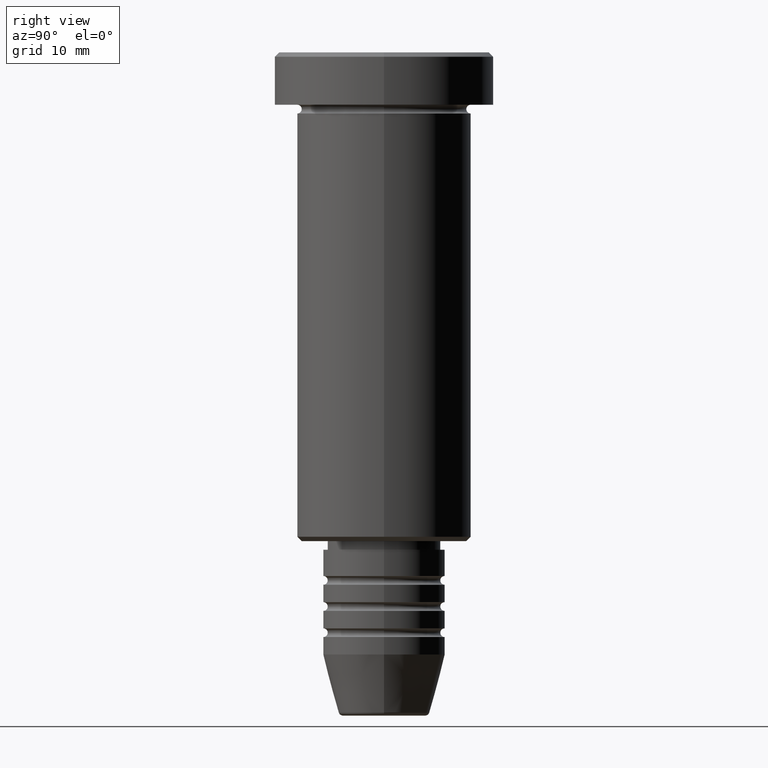
[diagram: clean part render]
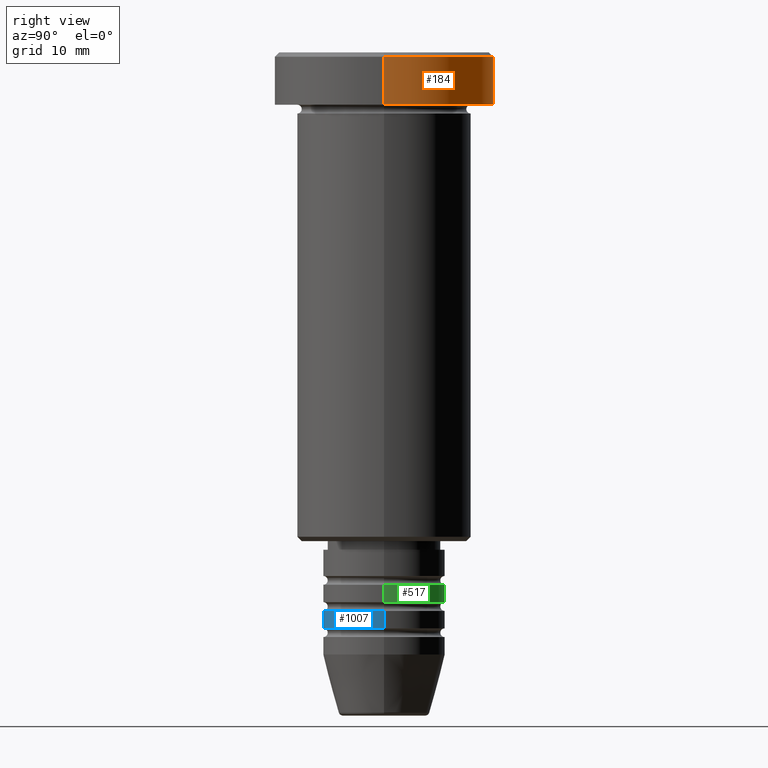
[diagram: same view with three faces highlighted in distinct colors, each labeled with its STEP entity id]
A machine part, right view with three faces highlighted in distinct colors.
Their STEP definitions:

[orange] entity #184 — the highlighted cylindrical surface (partial cylindrical patch) has radius 12.5 mm, axis along (-0, -0, 1).
#4 = CARTESIAN_POINT ( 'NONE',  ( -12.50000000000000000, 1.530808498934191521E-15, -0.4999999999999987232 ) ) ;
#36 = CARTESIAN_POINT ( 'NONE',  ( 0.000000000000000000, 0.000000000000000000, -5.999999999999996447 ) ) ;
#44 = DIRECTION ( 'NONE',  ( -0.000000000000000000, -0.000000000000000000, 1.000000000000000000 ) ) ;
#58 = EDGE_CURVE ( 'NONE', #172, #418, #178, .T. ) ;
#90 = DIRECTION ( 'NONE',  ( -0.000000000000000000, -0.000000000000000000, 1.000000000000000000 ) ) ;
#119 = VECTOR ( 'NONE', #90, 1000.000000000000000 ) ;
#172 = VERTEX_POINT ( 'NONE', #927 ) ;
#173 = FACE_OUTER_BOUND ( 'NONE', #781, .T. ) ;
#178 = LINE ( 'NONE', #268, #119 ) ;
#184 = ADVANCED_FACE ( 'NONE', ( #173 ), #531, .T. ) ;
#268 = CARTESIAN_POINT ( 'NONE',  ( -12.50000000000000000, 1.530808498934191521E-15, 0.000000000000000000 ) ) ;
#307 = DIRECTION ( 'NONE',  ( 1.000000000000000000, 0.000000000000000000, 0.000000000000000000 ) ) ;
#398 = VECTOR ( 'NONE', #476, 1000.000000000000000 ) ;
#418 = VERTEX_POINT ( 'NONE', #4 ) ;
#419 = AXIS2_PLACEMENT_3D ( 'NONE', #36, #44, #482 ) ;
#439 = ORIENTED_EDGE ( 'NONE', *, *, #58, .T. ) ;
#445 = DIRECTION ( 'NONE',  ( -0.000000000000000000, -0.000000000000000000, 1.000000000000000000 ) ) ;
#476 = DIRECTION ( 'NONE',  ( -0.000000000000000000, -0.000000000000000000, 1.000000000000000000 ) ) ;
#477 = VERTEX_POINT ( 'NONE', #671 ) ;
#482 = DIRECTION ( 'NONE',  ( 1.000000000000000000, 0.000000000000000000, 0.000000000000000000 ) ) ;
#487 = LINE ( 'NONE', #676, #398 ) ;
#511 = EDGE_CURVE ( 'NONE', #830, #172, #895, .T. ) ;
#531 = CYLINDRICAL_SURFACE ( 'NONE', #993, 12.50000000000000000 ) ;
#563 = ORIENTED_EDGE ( 'NONE', *, *, #1033, .F. ) ;
#601 = EDGE_CURVE ( 'NONE', #418, #477, #860, .T. ) ;
#671 = CARTESIAN_POINT ( 'NONE',  ( 12.50000000000000000, 0.000000000000000000, -0.4999999999999987232 ) ) ;
#676 = CARTESIAN_POINT ( 'NONE',  ( 12.50000000000000000, 0.000000000000000000, 0.000000000000000000 ) ) ;
#745 = ORIENTED_EDGE ( 'NONE', *, *, #511, .T. ) ;
#757 = CARTESIAN_POINT ( 'NONE',  ( 0.000000000000000000, 0.000000000000000000, -0.4999999999999987232 ) ) ;
#781 = EDGE_LOOP ( 'NONE', ( #745, #439, #1103, #563 ) ) ;
#799 = DIRECTION ( 'NONE',  ( 1.000000000000000000, 0.000000000000000000, 0.000000000000000000 ) ) ;
#830 = VERTEX_POINT ( 'NONE', #1062 ) ;
#860 = CIRCLE ( 'NONE', #1140, 12.50000000000000000 ) ;
#888 = CARTESIAN_POINT ( 'NONE',  ( 0.000000000000000000, 0.000000000000000000, 0.000000000000000000 ) ) ;
#895 = CIRCLE ( 'NONE', #419, 12.50000000000000000 ) ;
#927 = CARTESIAN_POINT ( 'NONE',  ( -12.50000000000000000, 1.530808498934191521E-15, -5.999999999999996447 ) ) ;
#993 = AXIS2_PLACEMENT_3D ( 'NONE', #888, #445, #799 ) ;
#1033 = EDGE_CURVE ( 'NONE', #830, #477, #487, .T. ) ;
#1062 = CARTESIAN_POINT ( 'NONE',  ( 12.50000000000000000, 0.000000000000000000, -5.999999999999996447 ) ) ;
#1103 = ORIENTED_EDGE ( 'NONE', *, *, #601, .T. ) ;
#1127 = DIRECTION ( 'NONE',  ( 0.000000000000000000, 0.000000000000000000, -1.000000000000000000 ) ) ;
#1140 = AXIS2_PLACEMENT_3D ( 'NONE', #757, #1127, #307 ) ;

[blue] entity #1007 — the highlighted cylindrical surface (partial cylindrical patch) has radius 7 mm, axis along (-0, -0, 1).
#50 = EDGE_CURVE ( 'NONE', #129, #285, #363, .T. ) ;
#75 = EDGE_CURVE ( 'NONE', #177, #129, #291, .T. ) ;
#100 = ORIENTED_EDGE ( 'NONE', *, *, #1110, .F. ) ;
#129 = VERTEX_POINT ( 'NONE', #1077 ) ;
#170 = DIRECTION ( 'NONE',  ( 1.000000000000000000, 0.000000000000000000, 0.000000000000000000 ) ) ;
#174 = CARTESIAN_POINT ( 'NONE',  ( 0.000000000000000000, 0.000000000000000000, -63.99999999999998579 ) ) ;
#177 = VERTEX_POINT ( 'NONE', #1082 ) ;
#204 = LINE ( 'NONE', #571, #557 ) ;
#231 = AXIS2_PLACEMENT_3D ( 'NONE', #810, #274, #717 ) ;
#240 = CARTESIAN_POINT ( 'NONE',  ( 0.000000000000000000, 0.000000000000000000, 0.000000000000000000 ) ) ;
#274 = DIRECTION ( 'NONE',  ( -0.000000000000000000, -0.000000000000000000, 1.000000000000000000 ) ) ;
#285 = VERTEX_POINT ( 'NONE', #341 ) ;
#291 = CIRCLE ( 'NONE', #231, 7.000000000000000000 ) ;
#312 = DIRECTION ( 'NONE',  ( 1.000000000000000000, 0.000000000000000000, 0.000000000000000000 ) ) ;
#322 = ORIENTED_EDGE ( 'NONE', *, *, #50, .T. ) ;
#341 = CARTESIAN_POINT ( 'NONE',  ( 7.000000000000000000, 0.000000000000000000, -63.99999999999998579 ) ) ;
#363 = LINE ( 'NONE', #1090, #1041 ) ;
#390 = ORIENTED_EDGE ( 'NONE', *, *, #75, .T. ) ;
#450 = ORIENTED_EDGE ( 'NONE', *, *, #599, .F. ) ;
#557 = VECTOR ( 'NONE', #926, 1000.000000000000000 ) ;
#571 = CARTESIAN_POINT ( 'NONE',  ( -7.000000000000000000, 8.572527594031473190E-16, 0.000000000000000000 ) ) ;
#574 = EDGE_LOOP ( 'NONE', ( #450, #390, #322, #100 ) ) ;
#594 = DIRECTION ( 'NONE',  ( -0.000000000000000000, -0.000000000000000000, 1.000000000000000000 ) ) ;
#599 = EDGE_CURVE ( 'NONE', #177, #624, #204, .T. ) ;
#624 = VERTEX_POINT ( 'NONE', #1174 ) ;
#678 = DIRECTION ( 'NONE',  ( -0.000000000000000000, -0.000000000000000000, 1.000000000000000000 ) ) ;
#713 = CIRCLE ( 'NONE', #1119, 7.000000000000000000 ) ;
#717 = DIRECTION ( 'NONE',  ( 1.000000000000000000, 0.000000000000000000, 0.000000000000000000 ) ) ;
#810 = CARTESIAN_POINT ( 'NONE',  ( 0.000000000000000000, 0.000000000000000000, -65.99999999999998579 ) ) ;
#897 = AXIS2_PLACEMENT_3D ( 'NONE', #240, #678, #312 ) ;
#926 = DIRECTION ( 'NONE',  ( -0.000000000000000000, -0.000000000000000000, 1.000000000000000000 ) ) ;
#996 = DIRECTION ( 'NONE',  ( -0.000000000000000000, -0.000000000000000000, 1.000000000000000000 ) ) ;
#1007 = ADVANCED_FACE ( 'NONE', ( #1037 ), #1056, .T. ) ;
#1037 = FACE_OUTER_BOUND ( 'NONE', #574, .T. ) ;
#1041 = VECTOR ( 'NONE', #996, 1000.000000000000000 ) ;
#1056 = CYLINDRICAL_SURFACE ( 'NONE', #897, 7.000000000000000000 ) ;
#1077 = CARTESIAN_POINT ( 'NONE',  ( 7.000000000000000000, 0.000000000000000000, -65.99999999999998579 ) ) ;
#1082 = CARTESIAN_POINT ( 'NONE',  ( -7.000000000000000000, 8.572527594031473190E-16, -65.99999999999998579 ) ) ;
#1090 = CARTESIAN_POINT ( 'NONE',  ( 7.000000000000000000, 0.000000000000000000, 0.000000000000000000 ) ) ;
#1110 = EDGE_CURVE ( 'NONE', #624, #285, #713, .T. ) ;
#1119 = AXIS2_PLACEMENT_3D ( 'NONE', #174, #594, #170 ) ;
#1174 = CARTESIAN_POINT ( 'NONE',  ( -7.000000000000000000, 8.572527594031473190E-16, -63.99999999999998579 ) ) ;

[green] entity #517 — the highlighted cylindrical surface (partial cylindrical patch) has radius 7 mm, axis along (-0, -0, 1).
#23 = CARTESIAN_POINT ( 'NONE',  ( -7.000000000000000000, 8.572527594031473190E-16, 0.000000000000000000 ) ) ;
#29 = CARTESIAN_POINT ( 'NONE',  ( -7.000000000000000000, 8.572527594031473190E-16, -62.99999999999998579 ) ) ;
#48 = DIRECTION ( 'NONE',  ( 1.000000000000000000, 0.000000000000000000, 0.000000000000000000 ) ) ;
#73 = CARTESIAN_POINT ( 'NONE',  ( 7.000000000000000000, 0.000000000000000000, 0.000000000000000000 ) ) ;
#152 = AXIS2_PLACEMENT_3D ( 'NONE', #586, #415, #859 ) ;
#166 = AXIS2_PLACEMENT_3D ( 'NONE', #513, #509, #48 ) ;
#223 = VERTEX_POINT ( 'NONE', #404 ) ;
#252 = LINE ( 'NONE', #73, #767 ) ;
#259 = DIRECTION ( 'NONE',  ( -0.000000000000000000, -0.000000000000000000, 1.000000000000000000 ) ) ;
#308 = EDGE_CURVE ( 'NONE', #791, #530, #252, .T. ) ;
#340 = EDGE_CURVE ( 'NONE', #530, #223, #394, .T. ) ;
#352 = ORIENTED_EDGE ( 'NONE', *, *, #340, .F. ) ;
#394 = CIRCLE ( 'NONE', #1057, 7.000000000000000000 ) ;
#404 = CARTESIAN_POINT ( 'NONE',  ( -7.000000000000000000, 8.572527594031473190E-16, -60.99999999999998579 ) ) ;
#411 = EDGE_LOOP ( 'NONE', ( #1132, #928, #352, #883 ) ) ;
#415 = DIRECTION ( 'NONE',  ( -0.000000000000000000, -0.000000000000000000, 1.000000000000000000 ) ) ;
#427 = EDGE_CURVE ( 'NONE', #968, #223, #473, .T. ) ;
#460 = DIRECTION ( 'NONE',  ( -0.000000000000000000, -0.000000000000000000, 1.000000000000000000 ) ) ;
#473 = LINE ( 'NONE', #23, #691 ) ;
#509 = DIRECTION ( 'NONE',  ( -0.000000000000000000, -0.000000000000000000, 1.000000000000000000 ) ) ;
#513 = CARTESIAN_POINT ( 'NONE',  ( 0.000000000000000000, 0.000000000000000000, -62.99999999999998579 ) ) ;
#517 = ADVANCED_FACE ( 'NONE', ( #775 ), #1142, .T. ) ;
#530 = VERTEX_POINT ( 'NONE', #947 ) ;
#586 = CARTESIAN_POINT ( 'NONE',  ( 0.000000000000000000, 0.000000000000000000, 0.000000000000000000 ) ) ;
#622 = CARTESIAN_POINT ( 'NONE',  ( 7.000000000000000000, 0.000000000000000000, -62.99999999999998579 ) ) ;
#691 = VECTOR ( 'NONE', #1112, 1000.000000000000000 ) ;
#767 = VECTOR ( 'NONE', #259, 1000.000000000000000 ) ;
#775 = FACE_OUTER_BOUND ( 'NONE', #411, .T. ) ;
#791 = VERTEX_POINT ( 'NONE', #622 ) ;
#859 = DIRECTION ( 'NONE',  ( 1.000000000000000000, 0.000000000000000000, 0.000000000000000000 ) ) ;
#883 = ORIENTED_EDGE ( 'NONE', *, *, #308, .F. ) ;
#884 = EDGE_CURVE ( 'NONE', #791, #968, #958, .T. ) ;
#900 = CARTESIAN_POINT ( 'NONE',  ( 0.000000000000000000, 0.000000000000000000, -60.99999999999998579 ) ) ;
#928 = ORIENTED_EDGE ( 'NONE', *, *, #427, .T. ) ;
#947 = CARTESIAN_POINT ( 'NONE',  ( 7.000000000000000000, 0.000000000000000000, -60.99999999999998579 ) ) ;
#958 = CIRCLE ( 'NONE', #166, 7.000000000000000000 ) ;
#968 = VERTEX_POINT ( 'NONE', #29 ) ;
#1005 = DIRECTION ( 'NONE',  ( 1.000000000000000000, 0.000000000000000000, 0.000000000000000000 ) ) ;
#1057 = AXIS2_PLACEMENT_3D ( 'NONE', #900, #460, #1005 ) ;
#1112 = DIRECTION ( 'NONE',  ( -0.000000000000000000, -0.000000000000000000, 1.000000000000000000 ) ) ;
#1132 = ORIENTED_EDGE ( 'NONE', *, *, #884, .T. ) ;
#1142 = CYLINDRICAL_SURFACE ( 'NONE', #152, 7.000000000000000000 ) ;